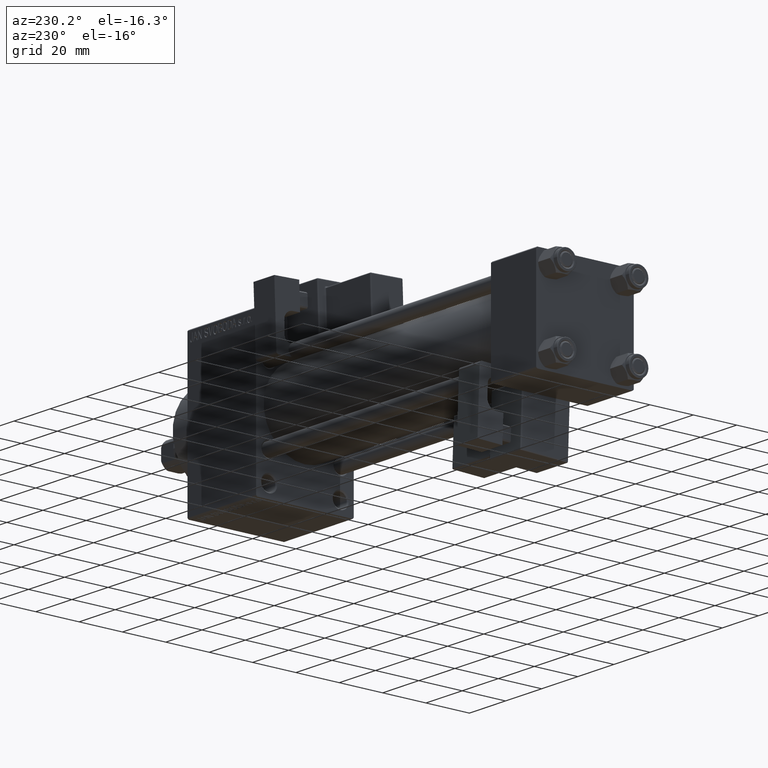
[diagram: clean part render]
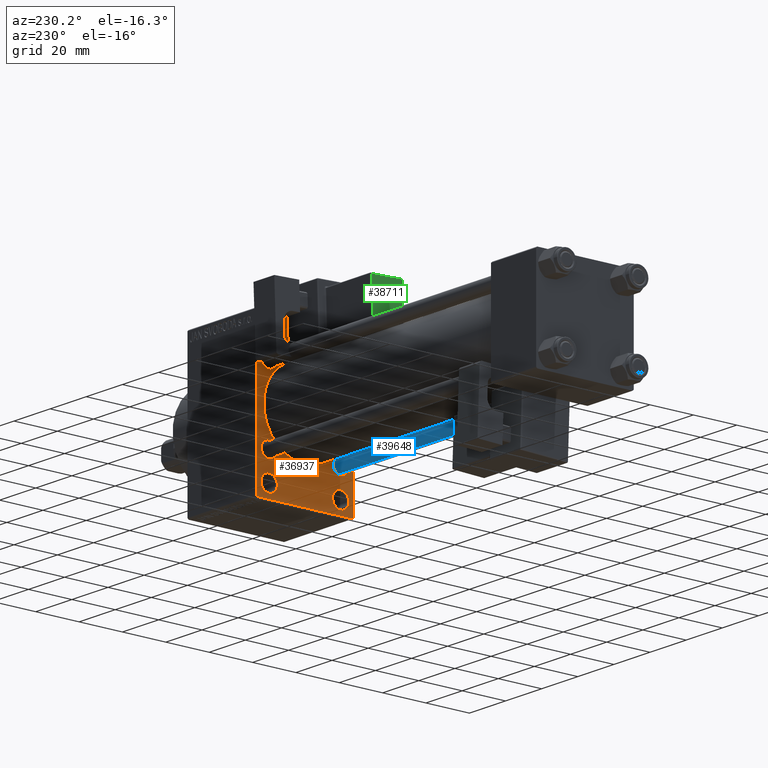
[diagram: same view with three faces highlighted in distinct colors, each labeled with its STEP entity id]
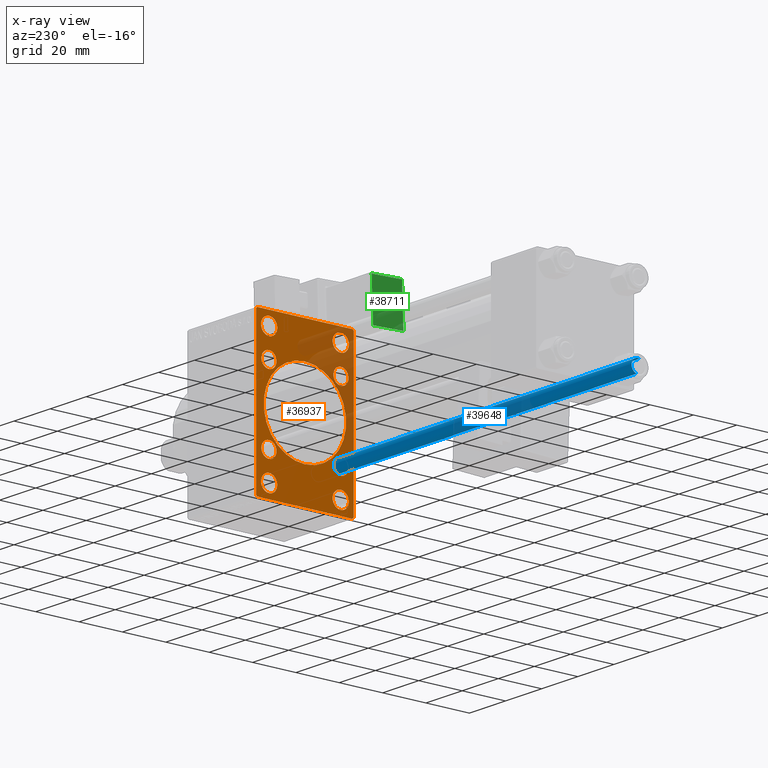
[diagram: x-ray of the same camera — body ghosted, the three highlighted faces saturated]
A machine part, auxiliary view with three faces highlighted in distinct colors.
The next image is the same camera in x-ray (body ghosted, the three faces saturated) — at least one of them is partly hidden behind the body in this view.
Their STEP definitions:

[orange] entity #36937 — the highlighted planar face has unit normal (-1, 0, 0).
#35 = LINE ( 'NONE', #15349, #38336 ) ;
#444 = DIRECTION ( 'NONE',  ( 0.000000000000000000, 0.7071067811865474617, -0.7071067811865474617 ) ) ;
#629 = DIRECTION ( 'NONE',  ( 1.000000000000000000, 0.000000000000000000, 0.000000000000000000 ) ) ;
#1093 = CARTESIAN_POINT ( 'NONE',  ( 155.0000000000000000, -22.50000000000000355, -34.50000000000000000 ) ) ;
#1645 = DIRECTION ( 'NONE',  ( 1.000000000000000000, 0.000000000000000000, 0.000000000000000000 ) ) ;
#2037 = CARTESIAN_POINT ( 'NONE',  ( 155.0000000000000000, -16.59999999999999076, -13.10000000000000142 ) ) ;
#2244 = CIRCLE ( 'NONE', #22327, 3.749999999999923617 ) ;
#2444 = VERTEX_POINT ( 'NONE', #41004 ) ;
#2683 = EDGE_CURVE ( 'NONE', #38011, #27918, #29996, .T. ) ;
#2703 = FACE_BOUND ( 'NONE', #40882, .T. ) ;
#2913 = AXIS2_PLACEMENT_3D ( 'NONE', #46003, #21927, #11626 ) ;
#2916 = ORIENTED_EDGE ( 'NONE', *, *, #35335, .T. ) ;
#2950 = FACE_BOUND ( 'NONE', #24669, .T. ) ;
#3246 = EDGE_CURVE ( 'NONE', #26127, #2444, #47576, .T. ) ;
#3478 = DIRECTION ( 'NONE',  ( 0.000000000000000000, 0.000000000000000000, -1.000000000000000000 ) ) ;
#3596 = EDGE_CURVE ( 'NONE', #28079, #14482, #21987, .T. ) ;
#3876 = EDGE_CURVE ( 'NONE', #45319, #25466, #35284, .T. ) ;
#3911 = DIRECTION ( 'NONE',  ( 1.000000000000000000, 0.000000000000000000, 0.000000000000000000 ) ) ;
#4092 = DIRECTION ( 'NONE',  ( 1.000000000000000000, 0.000000000000000000, 0.000000000000000000 ) ) ;
#4102 = VERTEX_POINT ( 'NONE', #45017 ) ;
#4430 = CARTESIAN_POINT ( 'NONE',  ( 155.0000000000000000, 22.49999999999999645, 35.00000000000000000 ) ) ;
#4637 = DIRECTION ( 'NONE',  ( 0.000000000000000000, -0.7071067811865474617, 0.7071067811865474617 ) ) ;
#4684 = EDGE_CURVE ( 'NONE', #4102, #18024, #36466, .T. ) ;
#5106 = CARTESIAN_POINT ( 'NONE',  ( 155.0000000000000000, -16.59999999999999076, 16.60000000000000853 ) ) ;
#5190 = VECTOR ( 'NONE', #12702, 1000.000000000000000 ) ;
#5330 = CARTESIAN_POINT ( 'NONE',  ( 155.0000000000000000, -2.602085213965210642E-15, 0.000000000000000000 ) ) ;
#5770 = DIRECTION ( 'NONE',  ( 0.000000000000000000, 0.000000000000000000, 1.000000000000000000 ) ) ;
#5897 = EDGE_CURVE ( 'NONE', #22890, #42345, #8684, .T. ) ;
#6015 = CARTESIAN_POINT ( 'NONE',  ( 155.0000000000000000, -16.50000000000000000, 32.74999999999992184 ) ) ;
#6579 = VECTOR ( 'NONE', #36541, 1000.000000000000114 ) ;
#6640 = CARTESIAN_POINT ( 'NONE',  ( 155.0000000000000000, 22.49999999999999645, 35.00000000000000000 ) ) ;
#7083 = CARTESIAN_POINT ( 'NONE',  ( 155.0000000000000000, 16.50000000000000000, -32.74999999999991473 ) ) ;
#7247 = CARTESIAN_POINT ( 'NONE',  ( 155.0000000000000000, -2.602085213965210642E-15, 0.000000000000000000 ) ) ;
#7611 = ORIENTED_EDGE ( 'NONE', *, *, #42989, .T. ) ;
#7650 = DIRECTION ( 'NONE',  ( 1.000000000000000000, 0.000000000000000000, 0.000000000000000000 ) ) ;
#8174 = CARTESIAN_POINT ( 'NONE',  ( 155.0000000000000000, 16.59999999999999787, -16.60000000000000497 ) ) ;
#8564 = CARTESIAN_POINT ( 'NONE',  ( 155.0000000000000000, 21.99999999999999645, 35.00000000000000000 ) ) ;
#8572 = EDGE_CURVE ( 'NONE', #18024, #4102, #39739, .T. ) ;
#8677 = VECTOR ( 'NONE', #11944, 1000.000000000000000 ) ;
#8684 = LINE ( 'NONE', #4430, #5190 ) ;
#8759 = ORIENTED_EDGE ( 'NONE', *, *, #5897, .T. ) ;
#8827 = ORIENTED_EDGE ( 'NONE', *, *, #19956, .T. ) ;
#8965 = VERTEX_POINT ( 'NONE', #40874 ) ;
#8980 = AXIS2_PLACEMENT_3D ( 'NONE', #17014, #35843, #24542 ) ;
#9011 = AXIS2_PLACEMENT_3D ( 'NONE', #29836, #21785, #18533 ) ;
#9039 = ORIENTED_EDGE ( 'NONE', *, *, #12307, .T. ) ;
#9605 = EDGE_CURVE ( 'NONE', #2444, #26127, #18984, .T. ) ;
#10055 = EDGE_CURVE ( 'NONE', #47499, #32606, #10997, .T. ) ;
#10371 = VERTEX_POINT ( 'NONE', #17432 ) ;
#10499 = DIRECTION ( 'NONE',  ( -1.000000000000000000, 0.000000000000000000, -0.000000000000000000 ) ) ;
#10709 = DIRECTION ( 'NONE',  ( 1.000000000000000000, 0.000000000000000000, 0.000000000000000000 ) ) ;
#10744 = FACE_BOUND ( 'NONE', #21300, .T. ) ;
#10777 = VECTOR ( 'NONE', #4637, 1000.000000000000114 ) ;
#10997 = CIRCLE ( 'NONE', #47827, 3.749999999999916511 ) ;
#11519 = CARTESIAN_POINT ( 'NONE',  ( 155.0000000000000000, -16.50000000000000000, -25.25000000000007105 ) ) ;
#11626 = DIRECTION ( 'NONE',  ( 0.000000000000000000, 0.000000000000000000, 1.000000000000000000 ) ) ;
#11944 = DIRECTION ( 'NONE',  ( 0.000000000000000000, -1.000000000000000000, 0.000000000000000000 ) ) ;
#12163 = CARTESIAN_POINT ( 'NONE',  ( 155.0000000000000000, -16.50000000000000000, 29.00000000000000711 ) ) ;
#12268 = ORIENTED_EDGE ( 'NONE', *, *, #31519, .F. ) ;
#12307 = EDGE_CURVE ( 'NONE', #18876, #36857, #44718, .T. ) ;
#12634 = DIRECTION ( 'NONE',  ( 0.000000000000000000, 0.000000000000000000, -1.000000000000000000 ) ) ;
#12702 = DIRECTION ( 'NONE',  ( 0.000000000000000000, 0.000000000000000000, -1.000000000000000000 ) ) ;
#13089 = ORIENTED_EDGE ( 'NONE', *, *, #48055, .T. ) ;
#13875 = DIRECTION ( 'NONE',  ( 1.000000000000000000, 0.000000000000000000, 0.000000000000000000 ) ) ;
#14268 = FACE_BOUND ( 'NONE', #27125, .T. ) ;
#14353 = CARTESIAN_POINT ( 'NONE',  ( 155.0000000000000000, -16.59999999999999076, -16.60000000000000853 ) ) ;
#14482 = VERTEX_POINT ( 'NONE', #2037 ) ;
#14763 = AXIS2_PLACEMENT_3D ( 'NONE', #7247, #15526, #3478 ) ;
#14797 = CARTESIAN_POINT ( 'NONE',  ( 155.0000000000000000, -16.59999999999999076, 16.60000000000000853 ) ) ;
#14846 = DIRECTION ( 'NONE',  ( 0.000000000000000000, 0.000000000000000000, 1.000000000000000000 ) ) ;
#15109 = VERTEX_POINT ( 'NONE', #37022 ) ;
#15349 = CARTESIAN_POINT ( 'NONE',  ( 155.0000000000000000, -22.50000000000000355, 35.00000000000000000 ) ) ;
#15526 = DIRECTION ( 'NONE',  ( 1.000000000000000000, 0.000000000000000000, 0.000000000000000000 ) ) ;
#15703 = DIRECTION ( 'NONE',  ( 0.000000000000000000, 0.000000000000000000, 1.000000000000000000 ) ) ;
#16183 = CARTESIAN_POINT ( 'NONE',  ( 155.0000000000000000, 22.49999999999999645, -35.00000000000000000 ) ) ;
#16679 = EDGE_CURVE ( 'NONE', #29778, #45319, #20691, .T. ) ;
#17014 = CARTESIAN_POINT ( 'NONE',  ( 155.0000000000000000, 16.50000000000000000, -28.99999999999999289 ) ) ;
#17220 = DIRECTION ( 'NONE',  ( 0.000000000000000000, 0.000000000000000000, 1.000000000000000000 ) ) ;
#17243 = DIRECTION ( 'NONE',  ( 0.000000000000000000, 0.000000000000000000, 1.000000000000000000 ) ) ;
#17273 = CARTESIAN_POINT ( 'NONE',  ( 155.0000000000000000, 16.59999999999999787, -20.10000000000000853 ) ) ;
#17384 = CARTESIAN_POINT ( 'NONE',  ( 155.0000000000000000, 16.59999999999999787, -13.09999999999999787 ) ) ;
#17432 = CARTESIAN_POINT ( 'NONE',  ( 155.0000000000000000, -16.50000000000000000, -32.74999999999991473 ) ) ;
#17555 = AXIS2_PLACEMENT_3D ( 'NONE', #12163, #7650, #26740 ) ;
#17792 = EDGE_LOOP ( 'NONE', ( #41675, #40328 ) ) ;
#18024 = VERTEX_POINT ( 'NONE', #22382 ) ;
#18068 = CARTESIAN_POINT ( 'NONE',  ( 155.0000000000000000, -21.99999999999998934, 35.00000000000000000 ) ) ;
#18111 = AXIS2_PLACEMENT_3D ( 'NONE', #5106, #629, #46783 ) ;
#18215 = ORIENTED_EDGE ( 'NONE', *, *, #37322, .T. ) ;
#18461 = VERTEX_POINT ( 'NONE', #18068 ) ;
#18533 = DIRECTION ( 'NONE',  ( 0.000000000000000000, 0.000000000000000000, 1.000000000000000000 ) ) ;
#18738 = DIRECTION ( 'NONE',  ( 1.000000000000000000, 0.000000000000000000, 0.000000000000000000 ) ) ;
#18876 = VERTEX_POINT ( 'NONE', #17384 ) ;
#18984 = CIRCLE ( 'NONE', #2913, 3.749999999999920064 ) ;
#19108 = CIRCLE ( 'NONE', #31931, 19.00000000000000000 ) ;
#19329 = EDGE_CURVE ( 'NONE', #19506, #15109, #26429, .T. ) ;
#19396 = AXIS2_PLACEMENT_3D ( 'NONE', #44421, #25107, #5770 ) ;
#19419 = DIRECTION ( 'NONE',  ( 0.000000000000000000, 0.000000000000000000, 1.000000000000000000 ) ) ;
#19506 = VERTEX_POINT ( 'NONE', #49248 ) ;
#19956 = EDGE_CURVE ( 'NONE', #42345, #29778, #40120, .T. ) ;
#20366 = AXIS2_PLACEMENT_3D ( 'NONE', #14353, #33682, #14846 ) ;
#20691 = LINE ( 'NONE', #16183, #8677 ) ;
#20760 = CARTESIAN_POINT ( 'NONE',  ( 155.0000000000000000, -21.99999999999998934, -35.00000000000000000 ) ) ;
#20959 = EDGE_CURVE ( 'NONE', #36857, #18876, #29732, .T. ) ;
#21209 = ORIENTED_EDGE ( 'NONE', *, *, #48909, .T. ) ;
#21300 = EDGE_LOOP ( 'NONE', ( #2916, #7611 ) ) ;
#21467 = LINE ( 'NONE', #48563, #6579 ) ;
#21594 = ORIENTED_EDGE ( 'NONE', *, *, #9605, .T. ) ;
#21616 = CARTESIAN_POINT ( 'NONE',  ( 155.0000000000000000, 16.59999999999999787, -16.60000000000000497 ) ) ;
#21748 = ORIENTED_EDGE ( 'NONE', *, *, #19329, .T. ) ;
#21785 = DIRECTION ( 'NONE',  ( 1.000000000000000000, 0.000000000000000000, 0.000000000000000000 ) ) ;
#21927 = DIRECTION ( 'NONE',  ( 1.000000000000000000, 0.000000000000000000, 0.000000000000000000 ) ) ;
#21987 = CIRCLE ( 'NONE', #20366, 3.500000000000006661 ) ;
#22327 = AXIS2_PLACEMENT_3D ( 'NONE', #47072, #1645, #17220 ) ;
#22382 = CARTESIAN_POINT ( 'NONE',  ( 155.0000000000000000, -16.59999999999999076, 20.10000000000001208 ) ) ;
#22791 = AXIS2_PLACEMENT_3D ( 'NONE', #30475, #29733, #45261 ) ;
#22825 = DIRECTION ( 'NONE',  ( 0.000000000000000000, 0.000000000000000000, 1.000000000000000000 ) ) ;
#22890 = VERTEX_POINT ( 'NONE', #46036 ) ;
#23037 = CARTESIAN_POINT ( 'NONE',  ( 155.0000000000000000, -22.50000000000000355, 34.50000000000000000 ) ) ;
#23279 = ORIENTED_EDGE ( 'NONE', *, *, #3876, .T. ) ;
#24542 = DIRECTION ( 'NONE',  ( 0.000000000000000000, 0.000000000000000000, 1.000000000000000000 ) ) ;
#24564 = CARTESIAN_POINT ( 'NONE',  ( 155.0000000000000000, 28.49999999999999645, -28.49999999999999645 ) ) ;
#24669 = EDGE_LOOP ( 'NONE', ( #40565, #46322 ) ) ;
#25107 = DIRECTION ( 'NONE',  ( 1.000000000000000000, 0.000000000000000000, 0.000000000000000000 ) ) ;
#25466 = VERTEX_POINT ( 'NONE', #1093 ) ;
#25629 = EDGE_LOOP ( 'NONE', ( #38657, #21748 ) ) ;
#25798 = ORIENTED_EDGE ( 'NONE', *, *, #30301, .T. ) ;
#26127 = VERTEX_POINT ( 'NONE', #44115 ) ;
#26207 = CARTESIAN_POINT ( 'NONE',  ( 155.0000000000000000, -16.50000000000000000, 25.25000000000009237 ) ) ;
#26385 = ORIENTED_EDGE ( 'NONE', *, *, #33037, .T. ) ;
#26429 = CIRCLE ( 'NONE', #36854, 3.500000000000006661 ) ;
#26740 = DIRECTION ( 'NONE',  ( 0.000000000000000000, 0.000000000000000000, 1.000000000000000000 ) ) ;
#27125 = EDGE_LOOP ( 'NONE', ( #18215, #29770 ) ) ;
#27918 = VERTEX_POINT ( 'NONE', #49506 ) ;
#28079 = VERTEX_POINT ( 'NONE', #39692 ) ;
#29130 = VECTOR ( 'NONE', #444, 1000.000000000000114 ) ;
#29582 = FACE_BOUND ( 'NONE', #25629, .T. ) ;
#29685 = AXIS2_PLACEMENT_3D ( 'NONE', #45759, #4092, #19419 ) ;
#29732 = CIRCLE ( 'NONE', #45721, 3.500000000000006661 ) ;
#29733 = DIRECTION ( 'NONE',  ( 1.000000000000000000, 0.000000000000000000, 0.000000000000000000 ) ) ;
#29770 = ORIENTED_EDGE ( 'NONE', *, *, #10055, .T. ) ;
#29778 = VERTEX_POINT ( 'NONE', #37096 ) ;
#29836 = CARTESIAN_POINT ( 'NONE',  ( 155.0000000000000000, 16.50000000000000000, -28.99999999999999289 ) ) ;
#29996 = CIRCLE ( 'NONE', #14763, 19.00000000000000000 ) ;
#30070 = EDGE_LOOP ( 'NONE', ( #21594, #30675 ) ) ;
#30301 = EDGE_CURVE ( 'NONE', #14482, #28079, #48688, .T. ) ;
#30475 = CARTESIAN_POINT ( 'NONE',  ( 155.0000000000000000, 16.50000000000000000, 29.00000000000000355 ) ) ;
#30616 = VECTOR ( 'NONE', #48550, 1000.000000000000000 ) ;
#30656 = CIRCLE ( 'NONE', #8980, 3.749999999999923617 ) ;
#30669 = DIRECTION ( 'NONE',  ( 0.000000000000000000, 0.000000000000000000, -1.000000000000000000 ) ) ;
#30675 = ORIENTED_EDGE ( 'NONE', *, *, #3246, .T. ) ;
#31519 = EDGE_CURVE ( 'NONE', #44480, #25466, #35, .T. ) ;
#31931 = AXIS2_PLACEMENT_3D ( 'NONE', #5330, #46997, #12634 ) ;
#32008 = CARTESIAN_POINT ( 'NONE',  ( 155.0000000000000000, -28.49999999999999645, -28.49999999999999645 ) ) ;
#32606 = VERTEX_POINT ( 'NONE', #6015 ) ;
#32717 = DIRECTION ( 'NONE',  ( 0.000000000000000000, 0.000000000000000000, 1.000000000000000000 ) ) ;
#33037 = EDGE_CURVE ( 'NONE', #27918, #38011, #19108, .T. ) ;
#33054 = CIRCLE ( 'NONE', #19396, 3.749999999999923617 ) ;
#33177 = DIRECTION ( 'NONE',  ( 1.000000000000000000, 0.000000000000000000, 0.000000000000000000 ) ) ;
#33599 = DIRECTION ( 'NONE',  ( -0.000000000000000000, 0.000000000000000000, 1.000000000000000000 ) ) ;
#33682 = DIRECTION ( 'NONE',  ( 1.000000000000000000, 0.000000000000000000, 0.000000000000000000 ) ) ;
#33758 = ORIENTED_EDGE ( 'NONE', *, *, #3596, .T. ) ;
#34107 = CARTESIAN_POINT ( 'NONE',  ( 155.0000000000000000, -2.752562955852396712E-16, -19.00000000000000000 ) ) ;
#34166 = ORIENTED_EDGE ( 'NONE', *, *, #46454, .F. ) ;
#34176 = DIRECTION ( 'NONE',  ( 0.000000000000000000, 0.000000000000000000, 1.000000000000000000 ) ) ;
#34219 = AXIS2_PLACEMENT_3D ( 'NONE', #8174, #3911, #15703 ) ;
#34348 = FACE_OUTER_BOUND ( 'NONE', #37941, .T. ) ;
#34669 = VERTEX_POINT ( 'NONE', #7083 ) ;
#34751 = VERTEX_POINT ( 'NONE', #8564 ) ;
#35199 = AXIS2_PLACEMENT_3D ( 'NONE', #37866, #10499, #33599 ) ;
#35284 = LINE ( 'NONE', #32008, #10777 ) ;
#35296 = CARTESIAN_POINT ( 'NONE',  ( 155.0000000000000000, 22.49999999999999645, -34.50000000000000000 ) ) ;
#35335 = EDGE_CURVE ( 'NONE', #40743, #10371, #2244, .T. ) ;
#35843 = DIRECTION ( 'NONE',  ( 1.000000000000000000, 0.000000000000000000, 0.000000000000000000 ) ) ;
#36466 = CIRCLE ( 'NONE', #40466, 3.500000000000003109 ) ;
#36541 = DIRECTION ( 'NONE',  ( -0.000000000000000000, 0.7071067811865474617, 0.7071067811865474617 ) ) ;
#36575 = CARTESIAN_POINT ( 'NONE',  ( 155.0000000000000000, -16.50000000000000000, 29.00000000000000711 ) ) ;
#36631 = EDGE_LOOP ( 'NONE', ( #9039, #47230 ) ) ;
#36726 = CARTESIAN_POINT ( 'NONE',  ( 155.0000000000000000, -16.59999999999999076, -16.60000000000000853 ) ) ;
#36854 = AXIS2_PLACEMENT_3D ( 'NONE', #41323, #18738, #49584 ) ;
#36857 = VERTEX_POINT ( 'NONE', #17273 ) ;
#36937 = ADVANCED_FACE ( 'NONE', ( #14268, #10744, #37110, #37356, #2950, #29582, #45614, #41359, #2703, #34348 ), #49624, .T. ) ;
#37022 = CARTESIAN_POINT ( 'NONE',  ( 155.0000000000000000, 16.59999999999999787, 20.10000000000001208 ) ) ;
#37096 = CARTESIAN_POINT ( 'NONE',  ( 155.0000000000000000, 21.99999999999999645, -35.00000000000000000 ) ) ;
#37110 = FACE_BOUND ( 'NONE', #17792, .T. ) ;
#37322 = EDGE_CURVE ( 'NONE', #32606, #47499, #39201, .T. ) ;
#37356 = FACE_BOUND ( 'NONE', #30070, .T. ) ;
#37866 = CARTESIAN_POINT ( 'NONE',  ( 155.0000000000000000, 0.000000000000000000, 0.000000000000000000 ) ) ;
#37941 = EDGE_LOOP ( 'NONE', ( #43921, #23279, #12268, #13089, #34166, #21209, #8759, #8827 ) ) ;
#38011 = VERTEX_POINT ( 'NONE', #34107 ) ;
#38113 = LINE ( 'NONE', #45618, #29130 ) ;
#38336 = VECTOR ( 'NONE', #30669, 1000.000000000000000 ) ;
#38657 = ORIENTED_EDGE ( 'NONE', *, *, #39283, .T. ) ;
#39148 = DIRECTION ( 'NONE',  ( -0.000000000000000000, -0.7071067811865474617, -0.7071067811865474617 ) ) ;
#39201 = CIRCLE ( 'NONE', #17555, 3.749999999999916511 ) ;
#39283 = EDGE_CURVE ( 'NONE', #15109, #19506, #43267, .T. ) ;
#39692 = CARTESIAN_POINT ( 'NONE',  ( 155.0000000000000000, -16.59999999999999076, -20.10000000000001208 ) ) ;
#39739 = CIRCLE ( 'NONE', #18111, 3.500000000000003109 ) ;
#39878 = EDGE_LOOP ( 'NONE', ( #25798, #33758 ) ) ;
#40120 = LINE ( 'NONE', #24564, #44856 ) ;
#40328 = ORIENTED_EDGE ( 'NONE', *, *, #43359, .T. ) ;
#40466 = AXIS2_PLACEMENT_3D ( 'NONE', #14797, #49403, #22825 ) ;
#40565 = ORIENTED_EDGE ( 'NONE', *, *, #8572, .T. ) ;
#40743 = VERTEX_POINT ( 'NONE', #11519 ) ;
#40874 = CARTESIAN_POINT ( 'NONE',  ( 155.0000000000000000, 16.50000000000000000, -25.25000000000007105 ) ) ;
#40882 = EDGE_LOOP ( 'NONE', ( #26385, #48045 ) ) ;
#41004 = CARTESIAN_POINT ( 'NONE',  ( 155.0000000000000000, 16.50000000000000000, 32.74999999999991473 ) ) ;
#41323 = CARTESIAN_POINT ( 'NONE',  ( 155.0000000000000000, 16.59999999999999787, 16.60000000000000497 ) ) ;
#41359 = FACE_BOUND ( 'NONE', #39878, .T. ) ;
#41675 = ORIENTED_EDGE ( 'NONE', *, *, #48830, .T. ) ;
#42345 = VERTEX_POINT ( 'NONE', #35296 ) ;
#42989 = EDGE_CURVE ( 'NONE', #10371, #40743, #33054, .T. ) ;
#43267 = CIRCLE ( 'NONE', #29685, 3.500000000000006661 ) ;
#43359 = EDGE_CURVE ( 'NONE', #34669, #8965, #30656, .T. ) ;
#43875 = AXIS2_PLACEMENT_3D ( 'NONE', #36726, #13875, #32717 ) ;
#43921 = ORIENTED_EDGE ( 'NONE', *, *, #16679, .T. ) ;
#44115 = CARTESIAN_POINT ( 'NONE',  ( 155.0000000000000000, 16.50000000000000000, 25.25000000000008882 ) ) ;
#44421 = CARTESIAN_POINT ( 'NONE',  ( 155.0000000000000000, -16.50000000000000000, -28.99999999999999289 ) ) ;
#44480 = VERTEX_POINT ( 'NONE', #23037 ) ;
#44718 = CIRCLE ( 'NONE', #34219, 3.500000000000006661 ) ;
#44856 = VECTOR ( 'NONE', #39148, 1000.000000000000114 ) ;
#45017 = CARTESIAN_POINT ( 'NONE',  ( 155.0000000000000000, -16.59999999999999076, 13.10000000000000142 ) ) ;
#45261 = DIRECTION ( 'NONE',  ( 0.000000000000000000, 0.000000000000000000, 1.000000000000000000 ) ) ;
#45284 = LINE ( 'NONE', #6640, #30616 ) ;
#45319 = VERTEX_POINT ( 'NONE', #20760 ) ;
#45614 = FACE_BOUND ( 'NONE', #36631, .T. ) ;
#45618 = CARTESIAN_POINT ( 'NONE',  ( 155.0000000000000000, 28.49999999999999645, 28.49999999999999645 ) ) ;
#45721 = AXIS2_PLACEMENT_3D ( 'NONE', #21616, #33177, #34176 ) ;
#45759 = CARTESIAN_POINT ( 'NONE',  ( 155.0000000000000000, 16.59999999999999787, 16.60000000000000497 ) ) ;
#45895 = CIRCLE ( 'NONE', #9011, 3.749999999999923617 ) ;
#46003 = CARTESIAN_POINT ( 'NONE',  ( 155.0000000000000000, 16.50000000000000000, 29.00000000000000355 ) ) ;
#46036 = CARTESIAN_POINT ( 'NONE',  ( 155.0000000000000000, 22.49999999999999645, 34.50000000000000000 ) ) ;
#46322 = ORIENTED_EDGE ( 'NONE', *, *, #4684, .T. ) ;
#46454 = EDGE_CURVE ( 'NONE', #34751, #18461, #45284, .T. ) ;
#46783 = DIRECTION ( 'NONE',  ( 0.000000000000000000, 0.000000000000000000, 1.000000000000000000 ) ) ;
#46997 = DIRECTION ( 'NONE',  ( 1.000000000000000000, 0.000000000000000000, 0.000000000000000000 ) ) ;
#47072 = CARTESIAN_POINT ( 'NONE',  ( 155.0000000000000000, -16.50000000000000000, -28.99999999999999289 ) ) ;
#47230 = ORIENTED_EDGE ( 'NONE', *, *, #20959, .T. ) ;
#47499 = VERTEX_POINT ( 'NONE', #26207 ) ;
#47576 = CIRCLE ( 'NONE', #22791, 3.749999999999920064 ) ;
#47827 = AXIS2_PLACEMENT_3D ( 'NONE', #36575, #10709, #17243 ) ;
#48045 = ORIENTED_EDGE ( 'NONE', *, *, #2683, .T. ) ;
#48055 = EDGE_CURVE ( 'NONE', #44480, #18461, #21467, .T. ) ;
#48550 = DIRECTION ( 'NONE',  ( 0.000000000000000000, -1.000000000000000000, 0.000000000000000000 ) ) ;
#48563 = CARTESIAN_POINT ( 'NONE',  ( 155.0000000000000000, -28.49999999999999645, 28.49999999999999645 ) ) ;
#48688 = CIRCLE ( 'NONE', #43875, 3.500000000000006661 ) ;
#48830 = EDGE_CURVE ( 'NONE', #8965, #34669, #45895, .T. ) ;
#48909 = EDGE_CURVE ( 'NONE', #34751, #22890, #38113, .T. ) ;
#49248 = CARTESIAN_POINT ( 'NONE',  ( 155.0000000000000000, 16.59999999999999787, 13.09999999999999609 ) ) ;
#49403 = DIRECTION ( 'NONE',  ( 1.000000000000000000, 0.000000000000000000, 0.000000000000000000 ) ) ;
#49506 = CARTESIAN_POINT ( 'NONE',  ( 155.0000000000000000, -2.602085213965210642E-15, 19.00000000000000000 ) ) ;
#49584 = DIRECTION ( 'NONE',  ( 0.000000000000000000, 0.000000000000000000, 1.000000000000000000 ) ) ;
#49624 = PLANE ( 'NONE',  #35199 ) ;

[blue] entity #39648 — the highlighted cylindrical surface (edge-blend (fillet) strip) has radius 3 mm, axis along (-1, 0, 0).
#3603 = VERTEX_POINT ( 'NONE', #45445 ) ;
#4971 = DIRECTION ( 'NONE',  ( 1.000000000000000000, 0.000000000000000000, 0.000000000000000000 ) ) ;
#9723 = DIRECTION ( 'NONE',  ( 1.000000000000000000, 0.000000000000000000, 0.000000000000000000 ) ) ;
#10226 = CIRCLE ( 'NONE', #28666, 3.000000000000000444 ) ;
#10696 = CARTESIAN_POINT ( 'NONE',  ( 3.000000000000000444, 3.673940397442060361E-16, 178.0000000000000000 ) ) ;
#10916 = CARTESIAN_POINT ( 'NONE',  ( 3.000000000000000444, 3.673940397442060361E-16, 0.5000000000000281997 ) ) ;
#11294 = VERTEX_POINT ( 'NONE', #37070 ) ;
#13483 = CARTESIAN_POINT ( 'NONE',  ( 0.000000000000000000, 0.000000000000000000, 0.5000000000000281997 ) ) ;
#13535 = CARTESIAN_POINT ( 'NONE',  ( 0.000000000000000000, 0.000000000000000000, 178.0000000000000000 ) ) ;
#15927 = ORIENTED_EDGE ( 'NONE', *, *, #30785, .T. ) ;
#16007 = CARTESIAN_POINT ( 'NONE',  ( -3.000000000000000444, 0.000000000000000000, 178.0000000000000000 ) ) ;
#16248 = LINE ( 'NONE', #16007, #46599 ) ;
#16305 = FACE_OUTER_BOUND ( 'NONE', #31354, .T. ) ;
#17739 = ORIENTED_EDGE ( 'NONE', *, *, #27516, .F. ) ;
#20537 = CARTESIAN_POINT ( 'NONE',  ( 0.000000000000000000, 0.000000000000000000, 177.5000000000000000 ) ) ;
#25782 = ORIENTED_EDGE ( 'NONE', *, *, #45220, .T. ) ;
#25870 = AXIS2_PLACEMENT_3D ( 'NONE', #20537, #40111, #4971 ) ;
#27325 = DIRECTION ( 'NONE',  ( -0.000000000000000000, -0.000000000000000000, -1.000000000000000000 ) ) ;
#27516 = EDGE_CURVE ( 'NONE', #3603, #31983, #33792, .T. ) ;
#27801 = DIRECTION ( 'NONE',  ( -0.000000000000000000, -0.000000000000000000, 1.000000000000000000 ) ) ;
#28666 = AXIS2_PLACEMENT_3D ( 'NONE', #13483, #27801, #9723 ) ;
#28805 = CARTESIAN_POINT ( 'NONE',  ( -3.000000000000000444, 0.000000000000000000, 177.5000000000000000 ) ) ;
#30767 = VERTEX_POINT ( 'NONE', #28805 ) ;
#30785 = EDGE_CURVE ( 'NONE', #11294, #31983, #10226, .T. ) ;
#31354 = EDGE_LOOP ( 'NONE', ( #17739, #40498, #25782, #15927 ) ) ;
#31983 = VERTEX_POINT ( 'NONE', #10916 ) ;
#33792 = LINE ( 'NONE', #10696, #45923 ) ;
#37070 = CARTESIAN_POINT ( 'NONE',  ( -3.000000000000000444, 0.000000000000000000, 0.5000000000000281997 ) ) ;
#37309 = DIRECTION ( 'NONE',  ( -0.000000000000000000, -0.000000000000000000, -1.000000000000000000 ) ) ;
#39648 = ADVANCED_FACE ( 'NONE', ( #16305 ), #47899, .T. ) ;
#40111 = DIRECTION ( 'NONE',  ( 0.000000000000000000, 0.000000000000000000, -1.000000000000000000 ) ) ;
#40498 = ORIENTED_EDGE ( 'NONE', *, *, #48552, .T. ) ;
#44141 = DIRECTION ( 'NONE',  ( -0.000000000000000000, -0.000000000000000000, -1.000000000000000000 ) ) ;
#45220 = EDGE_CURVE ( 'NONE', #30767, #11294, #16248, .T. ) ;
#45445 = CARTESIAN_POINT ( 'NONE',  ( 3.000000000000000444, 3.673940397442060361E-16, 177.5000000000000000 ) ) ;
#45681 = AXIS2_PLACEMENT_3D ( 'NONE', #13535, #44141, #46913 ) ;
#45923 = VECTOR ( 'NONE', #37309, 1000.000000000000000 ) ;
#46599 = VECTOR ( 'NONE', #27325, 1000.000000000000000 ) ;
#46913 = DIRECTION ( 'NONE',  ( -1.000000000000000000, 0.000000000000000000, 0.000000000000000000 ) ) ;
#47899 = CYLINDRICAL_SURFACE ( 'NONE', #45681, 3.000000000000000444 ) ;
#48552 = EDGE_CURVE ( 'NONE', #3603, #30767, #49105, .T. ) ;
#49105 = CIRCLE ( 'NONE', #25870, 3.000000000000000444 ) ;

[green] entity #38711 — the highlighted planar face has unit normal (-1, -0, -0).
#1472 = LINE ( 'NONE', #47650, #9432 ) ;
#5537 = PLANE ( 'NONE',  #5563 ) ;
#5563 = AXIS2_PLACEMENT_3D ( 'NONE', #31683, #12838, #8828 ) ;
#5796 = FACE_OUTER_BOUND ( 'NONE', #12784, .T. ) ;
#6644 = VERTEX_POINT ( 'NONE', #25872 ) ;
#6889 = CARTESIAN_POINT ( 'NONE',  ( 33.74999999999999289, -15.75000000000000000, 21.50000000000000355 ) ) ;
#7155 = EDGE_CURVE ( 'NONE', #22850, #6644, #20428, .T. ) ;
#8279 = ORIENTED_EDGE ( 'NONE', *, *, #7155, .T. ) ;
#8322 = ORIENTED_EDGE ( 'NONE', *, *, #44257, .T. ) ;
#8636 = DIRECTION ( 'NONE',  ( 2.006177025403372140E-32, -1.000000000000000000, -2.312964634635743450E-16 ) ) ;
#8828 = DIRECTION ( 'NONE',  ( 1.734723475976807341E-16, 0.000000000000000000, -1.000000000000000000 ) ) ;
#9432 = VECTOR ( 'NONE', #28595, 1000.000000000000000 ) ;
#11826 = EDGE_CURVE ( 'NONE', #34721, #22850, #1472, .T. ) ;
#12784 = EDGE_LOOP ( 'NONE', ( #8279, #8322, #22231, #34620 ) ) ;
#12838 = DIRECTION ( 'NONE',  ( 1.000000000000000000, -2.006177025403371045E-32, 1.734723475976807341E-16 ) ) ;
#16857 = LINE ( 'NONE', #27927, #34704 ) ;
#20185 = CARTESIAN_POINT ( 'NONE',  ( 33.74999999999999289, -30.25000000000000000, 21.50000000000000000 ) ) ;
#20428 = LINE ( 'NONE', #20185, #49348 ) ;
#22231 = ORIENTED_EDGE ( 'NONE', *, *, #45039, .T. ) ;
#22850 = VERTEX_POINT ( 'NONE', #6889 ) ;
#25872 = CARTESIAN_POINT ( 'NONE',  ( 33.74999999999999289, -29.75000000000000000, 21.50000000000000000 ) ) ;
#27595 = DIRECTION ( 'NONE',  ( 1.734723475976807341E-16, 0.000000000000000000, -1.000000000000000000 ) ) ;
#27927 = CARTESIAN_POINT ( 'NONE',  ( 33.75000000000000000, -15.25000000000000000, 2.500000000000008438 ) ) ;
#28595 = DIRECTION ( 'NONE',  ( -1.734723475976807341E-16, 0.000000000000000000, 1.000000000000000000 ) ) ;
#31669 = CARTESIAN_POINT ( 'NONE',  ( 33.75000000000000000, -15.75000000000000000, 2.500000000000008438 ) ) ;
#31683 = CARTESIAN_POINT ( 'NONE',  ( 33.75000000000000000, -1.755404897227950513E-31, 4.853889726050490295E-15 ) ) ;
#34620 = ORIENTED_EDGE ( 'NONE', *, *, #11826, .T. ) ;
#34704 = VECTOR ( 'NONE', #43706, 1000.000000000000000 ) ;
#34721 = VERTEX_POINT ( 'NONE', #31669 ) ;
#34896 = LINE ( 'NONE', #43137, #47441 ) ;
#38711 = ADVANCED_FACE ( 'NONE', ( #5796 ), #5537, .T. ) ;
#43137 = CARTESIAN_POINT ( 'NONE',  ( 33.75000000000000000, -29.75000000000000000, 2.000000000000006661 ) ) ;
#43706 = DIRECTION ( 'NONE',  ( -5.473822126268816683E-48, 1.000000000000000000, 1.156482317317871725E-16 ) ) ;
#44257 = EDGE_CURVE ( 'NONE', #6644, #44691, #34896, .T. ) ;
#44691 = VERTEX_POINT ( 'NONE', #46774 ) ;
#45039 = EDGE_CURVE ( 'NONE', #44691, #34721, #16857, .T. ) ;
#46774 = CARTESIAN_POINT ( 'NONE',  ( 33.75000000000000000, -29.75000000000000000, 2.500000000000006661 ) ) ;
#47441 = VECTOR ( 'NONE', #27595, 1000.000000000000000 ) ;
#47650 = CARTESIAN_POINT ( 'NONE',  ( 33.74999999999999289, -15.75000000000000000, 22.00000000000000711 ) ) ;
#49348 = VECTOR ( 'NONE', #8636, 1000.000000000000000 ) ;